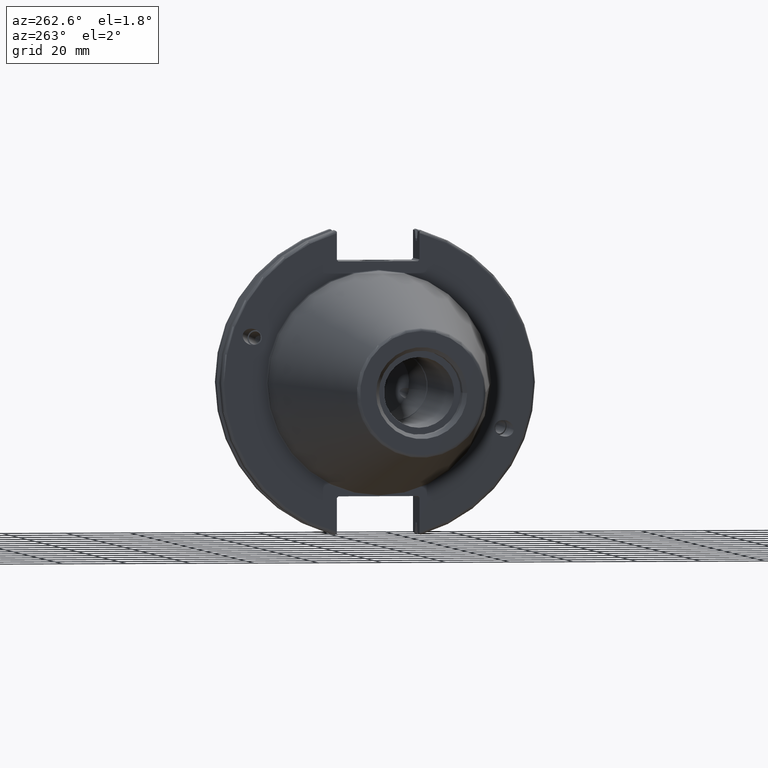
[diagram: clean part render]
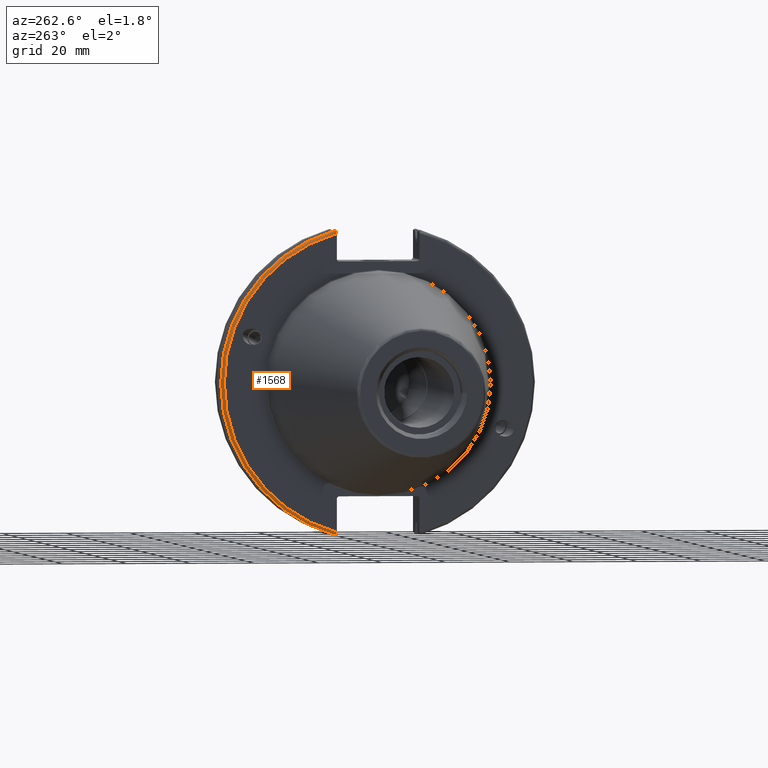
[diagram: same view with one face highlighted and labeled with its STEP entity id]
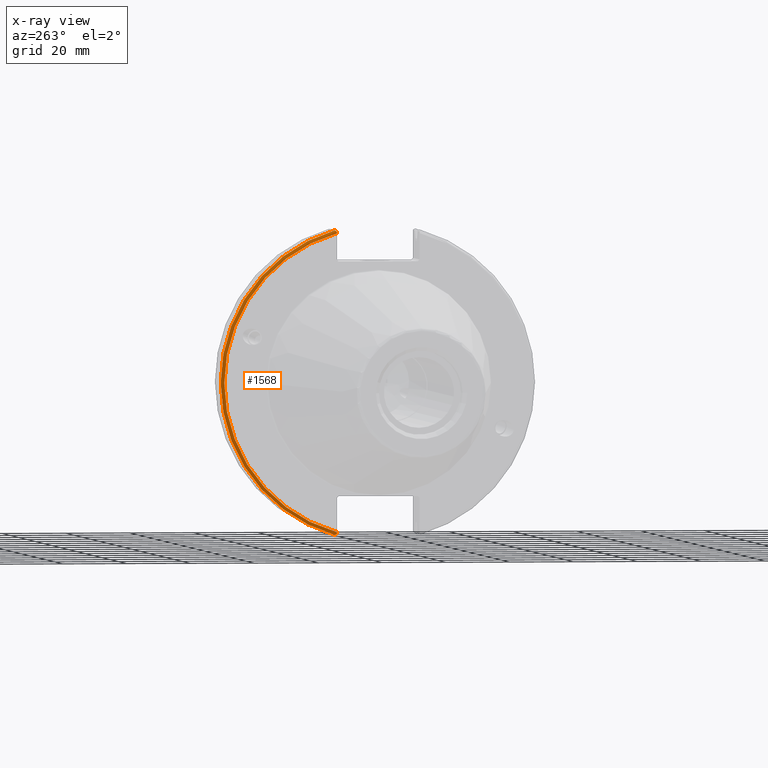
[diagram: x-ray of the same camera — body ghosted, the highlighted face saturated]
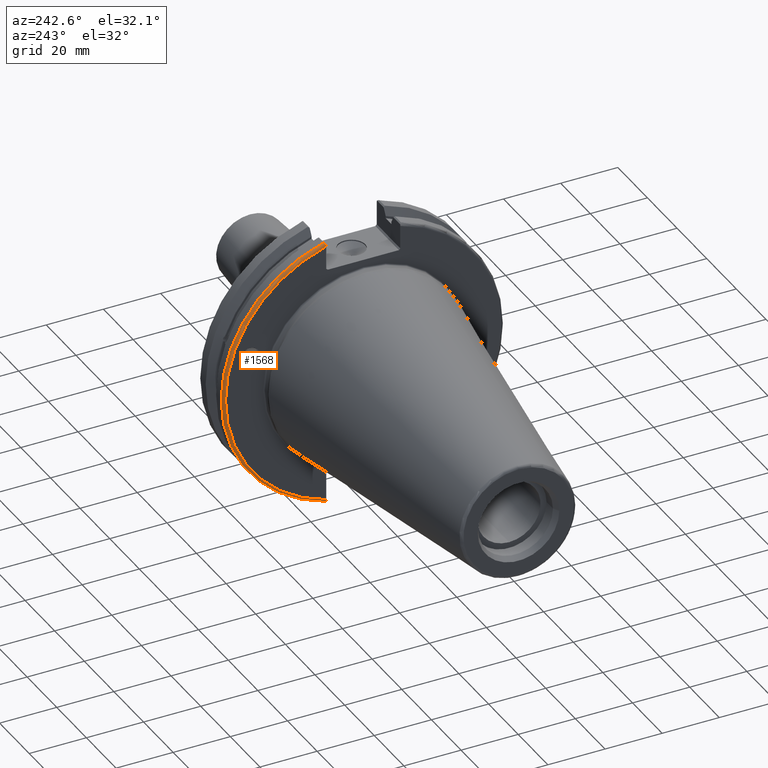
[diagram: same view with one face highlighted and labeled with its STEP entity id]
A machine part, auxiliary view. The second image highlights one B-rep face of the part: STEP entity #1568.
The next image is the same camera in x-ray: the body ghosted, the highlighted face saturated — about 0% of this face is hidden behind the body in this view.
A second angle (auxiliary view) of the same face is appended — the face is thin or edge-on in the first view.
In plain terms, the highlighted toroidal blend (fillet) surface has major radius 48.2125 mm and minor (blend) radius 1 mm.
Its self-contained STEP definition (entity closure, byte-faithful):
#59=B_SPLINE_CURVE_WITH_KNOTS('',3,(#2985,#2986,#2987,#2988,#2989,#2990),
 .UNSPECIFIED.,.F.,.F.,(4,2,4),(0.0976892167532858,0.112000071948292,0.150881870548587),
 .UNSPECIFIED.);
#68=B_SPLINE_CURVE_WITH_KNOTS('',3,(#3102,#3103,#3104,#3105,#3106,#3107,
#3108,#3109),.UNSPECIFIED.,.F.,.F.,(4,2,2,4),(-0.104075769062722,-0.0730268503455479,
-0.0343639873656265,0.),.UNSPECIFIED.);
#69=B_SPLINE_CURVE_WITH_KNOTS('',3,(#3112,#3113,#3114,#3115,#3116,#3117,
#3118,#3119),.UNSPECIFIED.,.F.,.F.,(4,2,2,4),(0.,0.0343639873656266,0.0730268503455482,
0.104075769062722),.UNSPECIFIED.);
#70=B_SPLINE_CURVE_WITH_KNOTS('',3,(#3120,#3121,#3122,#3123,#3124,#3125),
 .UNSPECIFIED.,.F.,.F.,(4,2,4),(0.452859340315923,0.491741138916218,0.506051994111224),
 .UNSPECIFIED.);
#111=TOROIDAL_SURFACE('',#1747,48.2125,1.);
#209=FACE_OUTER_BOUND('',#316,.T.);
#316=EDGE_LOOP('',(#1333,#1334,#1335,#1336,#1337,#1338));
#408=CIRCLE('',#1730,48.2125);
#414=CIRCLE('',#1748,49.2125);
#733=VERTEX_POINT('',#2923);
#734=VERTEX_POINT('',#2925);
#746=VERTEX_POINT('',#2984);
#762=VERTEX_POINT('',#3100);
#763=VERTEX_POINT('',#3101);
#764=VERTEX_POINT('',#3110);
#924=EDGE_CURVE('',#734,#733,#408,.T.);
#941=EDGE_CURVE('',#746,#734,#59,.T.);
#970=EDGE_CURVE('',#762,#763,#68,.T.);
#971=EDGE_CURVE('',#763,#764,#414,.T.);
#972=EDGE_CURVE('',#764,#746,#69,.T.);
#973=EDGE_CURVE('',#733,#762,#70,.T.);
#1333=ORIENTED_EDGE('',*,*,#970,.T.);
#1334=ORIENTED_EDGE('',*,*,#971,.T.);
#1335=ORIENTED_EDGE('',*,*,#972,.T.);
#1336=ORIENTED_EDGE('',*,*,#941,.T.);
#1337=ORIENTED_EDGE('',*,*,#924,.T.);
#1338=ORIENTED_EDGE('',*,*,#973,.T.);
#1568=ADVANCED_FACE('',(#209),#111,.T.);
#1730=AXIS2_PLACEMENT_3D('',#2926,#2064,#2065);
#1747=AXIS2_PLACEMENT_3D('',#3099,#2119,#2120);
#1748=AXIS2_PLACEMENT_3D('',#3111,#2121,#2122);
#2064=DIRECTION('center_axis',(1.,0.,0.));
#2065=DIRECTION('ref_axis',(0.,1.,-6.12323399573677E-17));
#2119=DIRECTION('center_axis',(1.,0.,0.));
#2120=DIRECTION('ref_axis',(0.,0.,-1.));
#2121=DIRECTION('center_axis',(-1.,0.,0.));
#2122=DIRECTION('ref_axis',(0.,1.,-6.12323399573677E-17));
#2923=CARTESIAN_POINT('',(3.175,12.95,46.4407434937254));
#2925=CARTESIAN_POINT('',(3.175,12.95,-46.4407434937254));
#2926=CARTESIAN_POINT('Origin',(3.175,0.,0.));
#2984=CARTESIAN_POINT('',(3.31949794294344,12.95,-46.9780755322918));
#2985=CARTESIAN_POINT('Ctrl Pts',(3.31949794294344,12.95,-46.9780755322918));
#2986=CARTESIAN_POINT('Ctrl Pts',(3.29341556483839,12.95,-46.9333752207329));
#2987=CARTESIAN_POINT('Ctrl Pts',(3.27115672912336,12.95,-46.887363294568));
#2988=CARTESIAN_POINT('Ctrl Pts',(3.20453530071253,12.95,-46.7230464903732));
#2989=CARTESIAN_POINT('Ctrl Pts',(3.175,12.95,-46.5703494890597));
#2990=CARTESIAN_POINT('Ctrl Pts',(3.175,12.95,-46.4407434937254));
#3099=CARTESIAN_POINT('Origin',(4.175,0.,0.));
#3100=CARTESIAN_POINT('',(3.31949794294344,12.95,46.9780755322918));
#3101=CARTESIAN_POINT('',(4.175,13.4317035994433,47.3440544806494));
#3102=CARTESIAN_POINT('Ctrl Pts',(3.31949794294344,12.95,46.9780755322918));
#3103=CARTESIAN_POINT('Ctrl Pts',(3.36785032278754,13.0300321736484,47.0388807469102));
#3104=CARTESIAN_POINT('Ctrl Pts',(3.43235971798504,13.1083611826073,47.0983919657547));
#3105=CARTESIAN_POINT('Ctrl Pts',(3.58507512107923,13.2478194810695,47.2043467509586));
#3106=CARTESIAN_POINT('Ctrl Pts',(3.70638116490965,13.3242014686233,47.2623787015413));
#3107=CARTESIAN_POINT('Ctrl Pts',(3.92661103245834,13.4067722493645,47.3251126473446));
#3108=CARTESIAN_POINT('Ctrl Pts',(4.06045337544791,13.4317035994433,47.3440544806494));
#3109=CARTESIAN_POINT('Ctrl Pts',(4.175,13.4317035994433,47.3440544806494));
#3110=CARTESIAN_POINT('',(4.175,13.4317035994433,-47.3440544806494));
#3111=CARTESIAN_POINT('Origin',(4.175,0.,0.));
#3112=CARTESIAN_POINT('Ctrl Pts',(4.175,13.4317035994433,-47.3440544806494));
#3113=CARTESIAN_POINT('Ctrl Pts',(4.06045337544791,13.4317035994433,-47.3440544806494));
#3114=CARTESIAN_POINT('Ctrl Pts',(3.92661103245834,13.4067722493645,-47.3251126473446));
#3115=CARTESIAN_POINT('Ctrl Pts',(3.70638116490964,13.3242014686232,-47.2623787015413));
#3116=CARTESIAN_POINT('Ctrl Pts',(3.58507512107923,13.2478194810695,-47.2043467509586));
#3117=CARTESIAN_POINT('Ctrl Pts',(3.43235971798504,13.1083611826073,-47.0983919657547));
#3118=CARTESIAN_POINT('Ctrl Pts',(3.36785032278754,13.0300321736484,-47.0388807469102));
#3119=CARTESIAN_POINT('Ctrl Pts',(3.31949794294344,12.95,-46.9780755322918));
#3120=CARTESIAN_POINT('Ctrl Pts',(3.175,12.95,46.4407434937254));
#3121=CARTESIAN_POINT('Ctrl Pts',(3.175,12.95,46.5703494890597));
#3122=CARTESIAN_POINT('Ctrl Pts',(3.20453530071253,12.95,46.7230464903732));
#3123=CARTESIAN_POINT('Ctrl Pts',(3.27115672912336,12.95,46.887363294568));
#3124=CARTESIAN_POINT('Ctrl Pts',(3.29341556483839,12.95,46.9333752207329));
#3125=CARTESIAN_POINT('Ctrl Pts',(3.31949794294344,12.95,46.9780755322918));